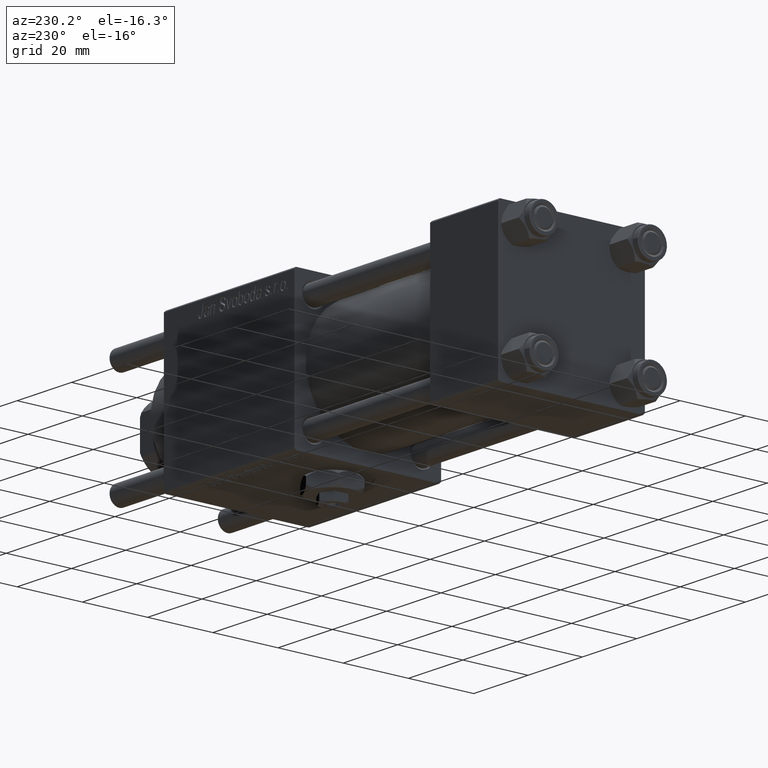
[diagram: clean part render]
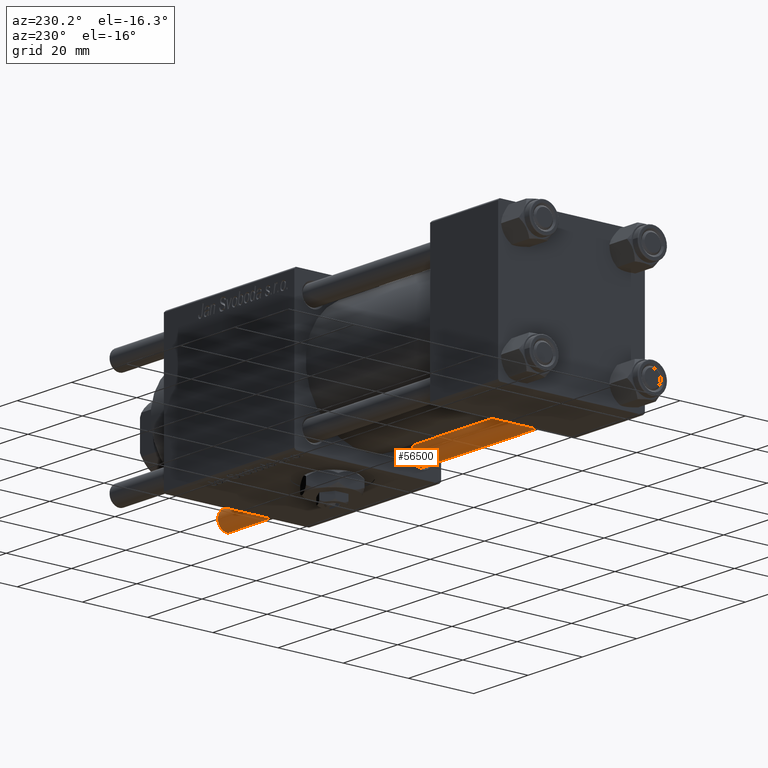
[diagram: same view with one face highlighted and labeled with its STEP entity id]
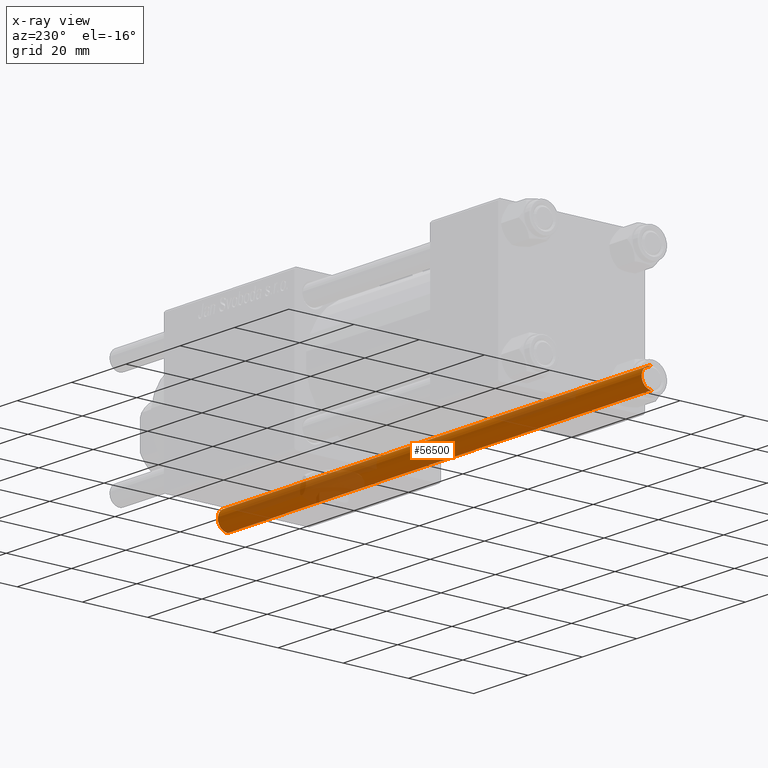
[diagram: x-ray of the same camera — body ghosted, the highlighted face saturated]
A machine part, auxiliary view. The second image highlights one B-rep face of the part: STEP entity #56500.
The next image is the same camera in x-ray: the body ghosted, the highlighted face saturated — about 30% of this face is hidden behind the body in this view.
In plain terms, the highlighted cylindrical surface (edge-blend (fillet) strip) has radius 3 mm, axis along (1, 0, 0).
Its self-contained STEP definition (entity closure, byte-faithful):
#833 = CIRCLE ( 'NONE', #12106, 3.000000000000000444 ) ;
#1209 = EDGE_CURVE ( 'NONE', #29354, #58055, #14221, .T. ) ;
#7791 = CARTESIAN_POINT ( 'NONE',  ( 0.000000000000000000, 0.000000000000000000, 157.0000000000000000 ) ) ;
#8103 = EDGE_CURVE ( 'NONE', #43508, #55965, #19769, .T. ) ;
#8551 = CARTESIAN_POINT ( 'NONE',  ( 0.000000000000000000, 0.000000000000000000, 156.5000000000000284 ) ) ;
#10869 = CARTESIAN_POINT ( 'NONE',  ( 3.000000000000000444, 3.673940397442060361E-16, 157.0000000000000000 ) ) ;
#11079 = CARTESIAN_POINT ( 'NONE',  ( -3.000000000000000444, 0.000000000000000000, 156.5000000000000284 ) ) ;
#12106 = AXIS2_PLACEMENT_3D ( 'NONE', #13832, #53235, #26288 ) ;
#13832 = CARTESIAN_POINT ( 'NONE',  ( 0.000000000000000000, 0.000000000000000000, 0.4999999999999726885 ) ) ;
#14221 = LINE ( 'NONE', #41170, #19503 ) ;
#15308 = DIRECTION ( 'NONE',  ( -0.000000000000000000, -0.000000000000000000, -1.000000000000000000 ) ) ;
#17246 = FACE_OUTER_BOUND ( 'NONE', #50732, .T. ) ;
#17713 = ORIENTED_EDGE ( 'NONE', *, *, #35412, .T. ) ;
#18122 = CARTESIAN_POINT ( 'NONE',  ( -3.000000000000000444, 0.000000000000000000, 0.4999999999999726885 ) ) ;
#18470 = CIRCLE ( 'NONE', #35452, 3.000000000000000444 ) ;
#19503 = VECTOR ( 'NONE', #27266, 1000.000000000000000 ) ;
#19769 = LINE ( 'NONE', #10869, #22928 ) ;
#21698 = CYLINDRICAL_SURFACE ( 'NONE', #34860, 3.000000000000000444 ) ;
#22928 = VECTOR ( 'NONE', #15308, 1000.000000000000000 ) ;
#23684 = CARTESIAN_POINT ( 'NONE',  ( 3.000000000000000444, 3.673940397442060361E-16, 0.4999999999999726885 ) ) ;
#25855 = DIRECTION ( 'NONE',  ( -0.000000000000000000, -0.000000000000000000, -1.000000000000000000 ) ) ;
#25899 = EDGE_CURVE ( 'NONE', #43508, #29354, #18470, .T. ) ;
#26288 = DIRECTION ( 'NONE',  ( 1.000000000000000000, 0.000000000000000000, 0.000000000000000000 ) ) ;
#27266 = DIRECTION ( 'NONE',  ( -0.000000000000000000, -0.000000000000000000, -1.000000000000000000 ) ) ;
#27791 = CARTESIAN_POINT ( 'NONE',  ( 3.000000000000000444, 3.673940397442060361E-16, 156.5000000000000284 ) ) ;
#29354 = VERTEX_POINT ( 'NONE', #11079 ) ;
#30752 = DIRECTION ( 'NONE',  ( 1.000000000000000000, 0.000000000000000000, 0.000000000000000000 ) ) ;
#34447 = DIRECTION ( 'NONE',  ( -1.000000000000000000, 0.000000000000000000, 0.000000000000000000 ) ) ;
#34860 = AXIS2_PLACEMENT_3D ( 'NONE', #7791, #25855, #34447 ) ;
#35095 = ORIENTED_EDGE ( 'NONE', *, *, #25899, .T. ) ;
#35412 = EDGE_CURVE ( 'NONE', #58055, #55965, #833, .T. ) ;
#35452 = AXIS2_PLACEMENT_3D ( 'NONE', #8551, #57991, #30752 ) ;
#41170 = CARTESIAN_POINT ( 'NONE',  ( -3.000000000000000444, 0.000000000000000000, 157.0000000000000000 ) ) ;
#43508 = VERTEX_POINT ( 'NONE', #27791 ) ;
#45556 = ORIENTED_EDGE ( 'NONE', *, *, #8103, .F. ) ;
#50732 = EDGE_LOOP ( 'NONE', ( #45556, #35095, #53644, #17713 ) ) ;
#53235 = DIRECTION ( 'NONE',  ( -0.000000000000000000, -0.000000000000000000, 1.000000000000000000 ) ) ;
#53644 = ORIENTED_EDGE ( 'NONE', *, *, #1209, .T. ) ;
#55965 = VERTEX_POINT ( 'NONE', #23684 ) ;
#56500 = ADVANCED_FACE ( 'NONE', ( #17246 ), #21698, .T. ) ;
#57991 = DIRECTION ( 'NONE',  ( 0.000000000000000000, 0.000000000000000000, -1.000000000000000000 ) ) ;
#58055 = VERTEX_POINT ( 'NONE', #18122 ) ;